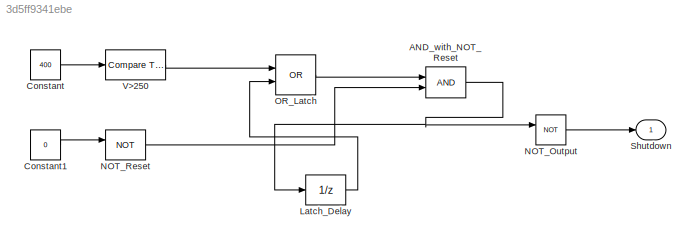
MODEL slx_3d5ff9341ebe
KIND model
CONFIG AbsTol = auto
CONFIG EnableMultiTasking = off
CONFIG FixedStep = auto
CONFIG MaxStep = auto
CONFIG MinStep = auto
CONFIG RelTol = 1e-3
CONFIG SampleTimeConstraint = Unconstrained
CONFIG SolverName = VariableStepAuto
CONFIG StartTime = 0.0
CONFIG StopTime = 10.0
BLOCK [Logic] AND_with_NOT_Reset
  AllPortsSameDT = off
  OutDataTypeStr = boolean
BLOCK [Constant] Constant
  Value = 400
BLOCK [Constant] Constant1
  Value = 0
BLOCK [UnitDelay] Latch_Delay
  HasFrameUpgradeWarning = on
  SampleTime = -1
BLOCK [Logic] NOT_Output
  AllPortsSameDT = off
  Operator = NOT
  OutDataTypeStr = boolean
BLOCK [Logic] NOT_Reset
  AllPortsSameDT = off
  Operator = NOT
  OutDataTypeStr = boolean
BLOCK [Logic] OR_Latch
  AllPortsSameDT = off
  Operator = OR
  OutDataTypeStr = boolean
BLOCK [Outport] Shutdown
BLOCK [Reference] V>250  REF=simulink/Logic and Bit
Operations/Compare
To Constant
  SourceBlock = simulink/Logic and Bit\nOperations/Compare\nTo Constant
  SourceType = Compare To Constant
NET AND_with_NOT_Reset:1 -> Latch_Delay:1, NOT_Output:1
LINE Constant1:1 -> NOT_Reset:1
LINE Constant:1 -> V>250:1
LINE Latch_Delay:1 -> OR_Latch:2
LINE NOT_Output:1 -> Shutdown:1
LINE NOT_Reset:1 -> AND_with_NOT_Reset:2
LINE OR_Latch:1 -> AND_with_NOT_Reset:1
LINE V>250:1 -> OR_Latch:1
note: NET lines group one-source signal fan-out (src -> all destinations, sorted); 1:1 wires keep LINE
